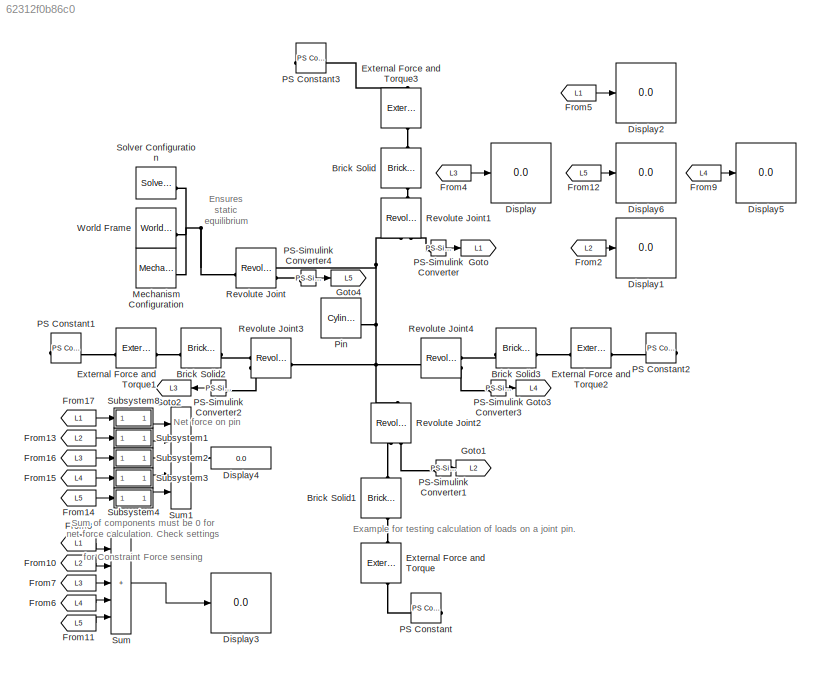
MODEL slx_62312f0b86c0
KIND model
CONFIG AbsTol = 1e-3
CONFIG EnableMultiTasking = on
CONFIG SolverName = VariableStepAuto
BLOCK [Reference] Brick Solid  REF=sm_lib/Body Elements/Brick Solid
  SourceBlock = sm_lib/Body Elements/Brick Solid
  SourceType = Brick Solid
BLOCK [Reference] Brick Solid1  REF=sm_lib/Body Elements/Brick Solid
  SourceBlock = sm_lib/Body Elements/Brick Solid
  SourceType = Brick Solid
BLOCK [Reference] Brick Solid2  REF=sm_lib/Body Elements/Brick Solid
  NameLocation = top
  SourceBlock = sm_lib/Body Elements/Brick Solid
  SourceType = Brick Solid
BLOCK [Reference] Brick Solid3  REF=sm_lib/Body Elements/Brick Solid
  SourceBlock = sm_lib/Body Elements/Brick Solid
  SourceType = Brick Solid
BLOCK [Display] Display
  Decimation = 1
BLOCK [Display] Display1
  Decimation = 1
BLOCK [Display] Display2
  Decimation = 1
BLOCK [Display] Display3
  Decimation = 1
BLOCK [Display] Display4
  Decimation = 1
  NameLocation = top
BLOCK [Display] Display5
  Decimation = 1
BLOCK [Display] Display6
  Decimation = 1
BLOCK [Reference] External Force and Torque  REF=sm_lib/Forces and
Torques/External Force
and Torque
  NameLocation = right
  SourceBlock = sm_lib/Forces and\nTorques/External Force\nand Torque
  SourceType = External Force\nand Torque
BLOCK [Reference] External Force and Torque1  REF=sm_lib/Forces and
Torques/External Force
and Torque
  NameLocation = top
  SourceBlock = sm_lib/Forces and\nTorques/External Force\nand Torque
  SourceType = External Force\nand Torque
BLOCK [Reference] External Force and Torque2  REF=sm_lib/Forces and
Torques/External Force
and Torque
  SourceBlock = sm_lib/Forces and\nTorques/External Force\nand Torque
  SourceType = External Force\nand Torque
BLOCK [Reference] External Force and Torque3  REF=sm_lib/Forces and
Torques/External Force
and Torque
  NameLocation = left
  SourceBlock = sm_lib/Forces and\nTorques/External Force\nand Torque
  SourceType = External Force\nand Torque
BLOCK [From] From10
  GotoTag = L2
BLOCK [From] From11
  GotoTag = L5
BLOCK [From] From12
  GotoTag = L5
BLOCK [From] From13
  GotoTag = L2
BLOCK [From] From14
  GotoTag = L5
BLOCK [From] From15
  GotoTag = L4
BLOCK [From] From16
  GotoTag = L3
BLOCK [From] From17
  GotoTag = L1
BLOCK [From] From2
  GotoTag = L2
BLOCK [From] From4
  GotoTag = L3
BLOCK [From] From5
  GotoTag = L1
BLOCK [From] From6
  GotoTag = L4
BLOCK [From] From7
  GotoTag = L3
BLOCK [From] From8
  GotoTag = L1
BLOCK [From] From9
  GotoTag = L4
BLOCK [Goto] Goto
  GotoTag = L1
BLOCK [Goto] Goto1
  GotoTag = L2
BLOCK [Goto] Goto2
  GotoTag = L3
BLOCK [Goto] Goto3
  GotoTag = L4
BLOCK [Goto] Goto4
  GotoTag = L5
BLOCK [Reference] Mechanism Configuration  REF=sm_lib/Utilities/Mechanism
Configuration
  SourceBlock = sm_lib/Utilities/Mechanism\nConfiguration
  SourceType = Mechanism\nConfiguration
BLOCK [Reference] PS Constant  REF=fl_lib/Physical Signals/Sources/PS Constant
  AttributesFormatString = Value: %<constant>
  SourceBlock = fl_lib/Physical Signals/Sources/PS Constant
  SourceType = PS Constant
BLOCK [Reference] PS Constant1  REF=fl_lib/Physical Signals/Sources/PS Constant
  AttributesFormatString = Value: %<constant>
  SourceBlock = fl_lib/Physical Signals/Sources/PS Constant
  SourceType = PS Constant
BLOCK [Reference] PS Constant2  REF=fl_lib/Physical Signals/Sources/PS Constant
  AttributesFormatString = Value: %<constant>
  SourceBlock = fl_lib/Physical Signals/Sources/PS Constant
  SourceType = PS Constant
BLOCK [Reference] PS Constant3  REF=fl_lib/Physical Signals/Sources/PS Constant
  AttributesFormatString = Value: %<constant>
  SourceBlock = fl_lib/Physical Signals/Sources/PS Constant
  SourceType = PS Constant
BLOCK [Reference] PS-Simulink Converter  REF=nesl_utility/PS-Simulink
Converter
  SourceBlock = nesl_utility/PS-Simulink\nConverter
  SourceType = PS-Simulink\nConverter
BLOCK [Reference] PS-Simulink Converter1  REF=nesl_utility/PS-Simulink
Converter
  SourceBlock = nesl_utility/PS-Simulink\nConverter
  SourceType = PS-Simulink\nConverter
BLOCK [Reference] PS-Simulink Converter2  REF=nesl_utility/PS-Simulink
Converter
  SourceBlock = nesl_utility/PS-Simulink\nConverter
  SourceType = PS-Simulink\nConverter
BLOCK [Reference] PS-Simulink Converter3  REF=nesl_utility/PS-Simulink
Converter
  SourceBlock = nesl_utility/PS-Simulink\nConverter
  SourceType = PS-Simulink\nConverter
BLOCK [Reference] PS-Simulink Converter4  REF=nesl_utility/PS-Simulink
Converter
  SourceBlock = nesl_utility/PS-Simulink\nConverter
  SourceType = PS-Simulink\nConverter
BLOCK [Reference] Pin  REF=sm_lib/Body Elements/Cylindrical Solid
  SourceBlock = sm_lib/Body Elements/Cylindrical Solid
  SourceType = Cylindrical Solid
BLOCK [Reference] Revolute Joint  REF=sm_lib/Joints/Revolute Joint
  SourceBlock = sm_lib/Joints/Revolute Joint
  SourceType = Revolute Joint
BLOCK [Reference] Revolute Joint1  REF=sm_lib/Joints/Revolute Joint
  AttributesFormatString = q=%<PositionTargetValue> %<PositionTargetValueUnits>
  NameLocation = left
  SourceBlock = sm_lib/Joints/Revolute Joint
  SourceType = Revolute Joint
BLOCK [Reference] Revolute Joint2  REF=sm_lib/Joints/Revolute Joint
  AttributesFormatString = q=%<PositionTargetValue> %<PositionTargetValueUnits>
  NameLocation = left
  SourceBlock = sm_lib/Joints/Revolute Joint
  SourceType = Revolute Joint
BLOCK [Reference] Revolute Joint3  REF=sm_lib/Joints/Revolute Joint
  AttributesFormatString = q=%<PositionTargetValue> %<PositionTargetValueUnits>
  SourceBlock = sm_lib/Joints/Revolute Joint
  SourceType = Revolute Joint
BLOCK [Reference] Revolute Joint4  REF=sm_lib/Joints/Revolute Joint
  AttributesFormatString = q=%<PositionTargetValue> %<PositionTargetValueUnits>
  SourceBlock = sm_lib/Joints/Revolute Joint
  SourceType = Revolute Joint
BLOCK [Reference] Solver Configuration  REF=nesl_utility/Solver
Configuration
  SourceBlock = nesl_utility/Solver\nConfiguration
  SourceType = Solver\nConfiguration
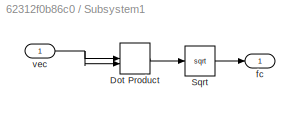
BLOCK [SubSystem] Subsystem1
BLOCK [DotProduct] Subsystem1/Dot Product
  OutDataTypeStr = Inherit: Inherit via internal rule
BLOCK [Sqrt] Subsystem1/Sqrt
BLOCK [Outport] Subsystem1/fc
BLOCK [Inport] Subsystem1/vec
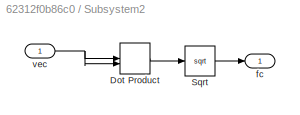
BLOCK [SubSystem] Subsystem2
BLOCK [DotProduct] Subsystem2/Dot Product
  OutDataTypeStr = Inherit: Inherit via internal rule
BLOCK [Sqrt] Subsystem2/Sqrt
BLOCK [Outport] Subsystem2/fc
BLOCK [Inport] Subsystem2/vec
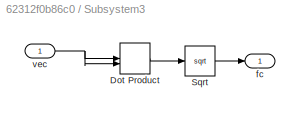
BLOCK [SubSystem] Subsystem3
BLOCK [DotProduct] Subsystem3/Dot Product
  OutDataTypeStr = Inherit: Inherit via internal rule
BLOCK [Sqrt] Subsystem3/Sqrt
BLOCK [Outport] Subsystem3/fc
BLOCK [Inport] Subsystem3/vec
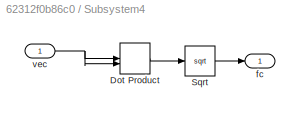
BLOCK [SubSystem] Subsystem4
BLOCK [DotProduct] Subsystem4/Dot Product
  OutDataTypeStr = Inherit: Inherit via internal rule
BLOCK [Sqrt] Subsystem4/Sqrt
BLOCK [Outport] Subsystem4/fc
BLOCK [Inport] Subsystem4/vec
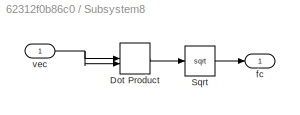
BLOCK [SubSystem] Subsystem8
BLOCK [DotProduct] Subsystem8/Dot Product
  OutDataTypeStr = Inherit: Inherit via internal rule
BLOCK [Sqrt] Subsystem8/Sqrt
BLOCK [Outport] Subsystem8/fc
BLOCK [Inport] Subsystem8/vec
BLOCK [Sum] Sum
  IconShape = rectangular
  Inputs = +++++
BLOCK [Sum] Sum1
  IconShape = rectangular
  Inputs = +++++
BLOCK [Reference] World Frame  REF=sm_lib/Frames and
Transforms/World Frame
  SourceBlock = sm_lib/Frames and\nTransforms/World Frame
  SourceType = World Frame
ANNOTATION (root): Example for testing calculation of loads on a joint pin.
ANNOTATION (root): Ensures static equilibrium
ANNOTATION (root): Net force on pin
ANNOTATION (root): Sum of components must be 0 for net force calculation. Check settings for Constraint Force sensing
LINE From10:1 -> Sum:2
LINE From11:1 -> Sum:5
LINE From12:1 -> Display6:1
LINE From13:1 -> Subsystem1:1
LINE From14:1 -> Subsystem4:1
LINE From15:1 -> Subsystem3:1
LINE From16:1 -> Subsystem2:1
LINE From17:1 -> Subsystem8:1
LINE From2:1 -> Display1:1
LINE From4:1 -> Display:1
LINE From5:1 -> Display2:1
LINE From6:1 -> Sum:4
LINE From7:1 -> Sum:3
LINE From8:1 -> Sum:1
LINE From9:1 -> Display5:1
LINE PS-Simulink Converter1:1 -> Goto1:1
LINE PS-Simulink Converter2:1 -> Goto2:1
LINE PS-Simulink Converter3:1 -> Goto3:1
LINE PS-Simulink Converter4:1 -> Goto4:1
LINE PS-Simulink Converter:1 -> Goto:1
LINE Subsystem1/Dot Product:1 -> Subsystem1/Sqrt:1
LINE Subsystem1/Sqrt:1 -> Subsystem1/fc:1
NET Subsystem1/vec:1 -> Subsystem1/Dot Product:1, Subsystem1/Dot Product:2
LINE Subsystem1:1 -> Sum1:2
LINE Subsystem2/Dot Product:1 -> Subsystem2/Sqrt:1
LINE Subsystem2/Sqrt:1 -> Subsystem2/fc:1
NET Subsystem2/vec:1 -> Subsystem2/Dot Product:1, Subsystem2/Dot Product:2
LINE Subsystem2:1 -> Sum1:3
LINE Subsystem3/Dot Product:1 -> Subsystem3/Sqrt:1
LINE Subsystem3/Sqrt:1 -> Subsystem3/fc:1
NET Subsystem3/vec:1 -> Subsystem3/Dot Product:1, Subsystem3/Dot Product:2
LINE Subsystem3:1 -> Sum1:4
LINE Subsystem4/Dot Product:1 -> Subsystem4/Sqrt:1
LINE Subsystem4/Sqrt:1 -> Subsystem4/fc:1
NET Subsystem4/vec:1 -> Subsystem4/Dot Product:1, Subsystem4/Dot Product:2
LINE Subsystem4:1 -> Sum1:5
LINE Subsystem8/Dot Product:1 -> Subsystem8/Sqrt:1
LINE Subsystem8/Sqrt:1 -> Subsystem8/fc:1
NET Subsystem8/vec:1 -> Subsystem8/Dot Product:1, Subsystem8/Dot Product:2
LINE Subsystem8:1 -> Sum1:1
LINE Sum1:1 -> Display4:1
LINE Sum:1 -> Display3:1
PLINE Brick Solid1:LConn1 -- External Force and Torque:RConn1
PLINE Brick Solid1:RConn1 -- Revolute Joint2:RConn1
PLINE Brick Solid2:LConn1 -- External Force and Torque1:RConn1
PLINE Brick Solid2:RConn1 -- Revolute Joint3:RConn1
PLINE Brick Solid3:LConn1 -- External Force and Torque2:RConn1
PLINE Brick Solid3:RConn1 -- Revolute Joint4:RConn1
PLINE Brick Solid:LConn1 -- Revolute Joint1:LConn1
PLINE Brick Solid:RConn1 -- External Force and Torque3:RConn1
PLINE External Force and Torque1:LConn1 -- PS Constant1:RConn1
PLINE External Force and Torque2:LConn1 -- PS Constant2:RConn1
PLINE External Force and Torque3:LConn1 -- PS Constant3:RConn1
PLINE External Force and Torque:LConn1 -- PS Constant:RConn1
PNET net1: Mechanism Configuration:RConn1 -- Revolute Joint:LConn1 -- Solver Configuration:RConn1 -- World Frame:RConn1
PLINE PS-Simulink Converter1:LConn1 -- Revolute Joint2:RConn2
PLINE PS-Simulink Converter2:LConn1 -- Revolute Joint3:RConn2
PLINE PS-Simulink Converter3:LConn1 -- Revolute Joint4:RConn2
PLINE PS-Simulink Converter4:LConn1 -- Revolute Joint:RConn2
PLINE PS-Simulink Converter:LConn1 -- Revolute Joint1:RConn2
PNET net2: Pin:RConn1 -- Revolute Joint1:RConn1 -- Revolute Joint2:LConn1 -- Revolute Joint3:LConn1 -- Revolute Joint4:LConn1 -- Revolute Joint:RConn1
note: NET lines group one-source signal fan-out (src -> all destinations, sorted); 1:1 wires keep LINE; PNET lines group multi-terminal physical nets as a canonical sorted terminal list (undirected conserving connections); 2-terminal nets keep the pairwise PLINE form
